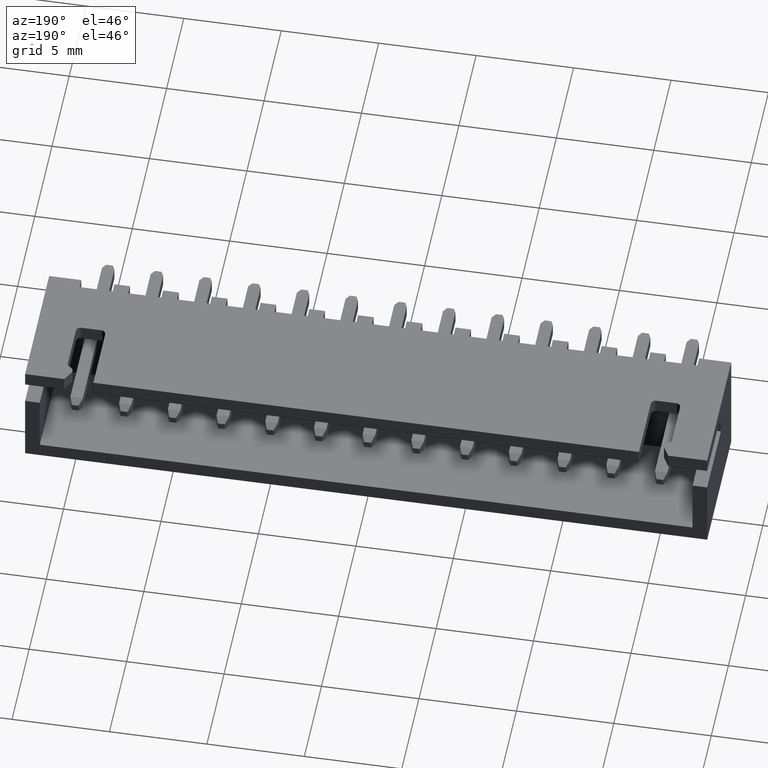
[diagram: clean part render]
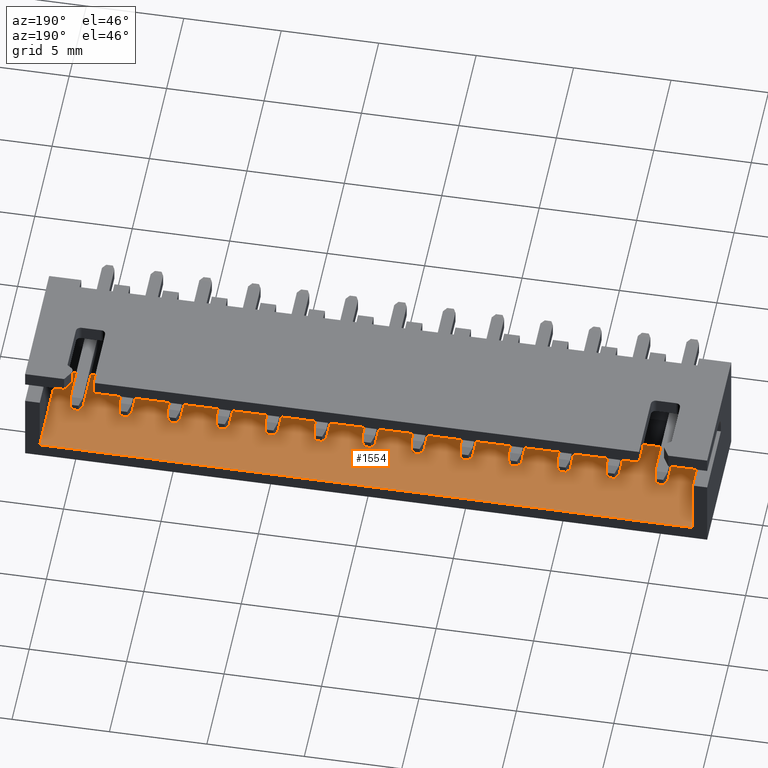
[diagram: same view with one face highlighted and labeled with its STEP entity id]
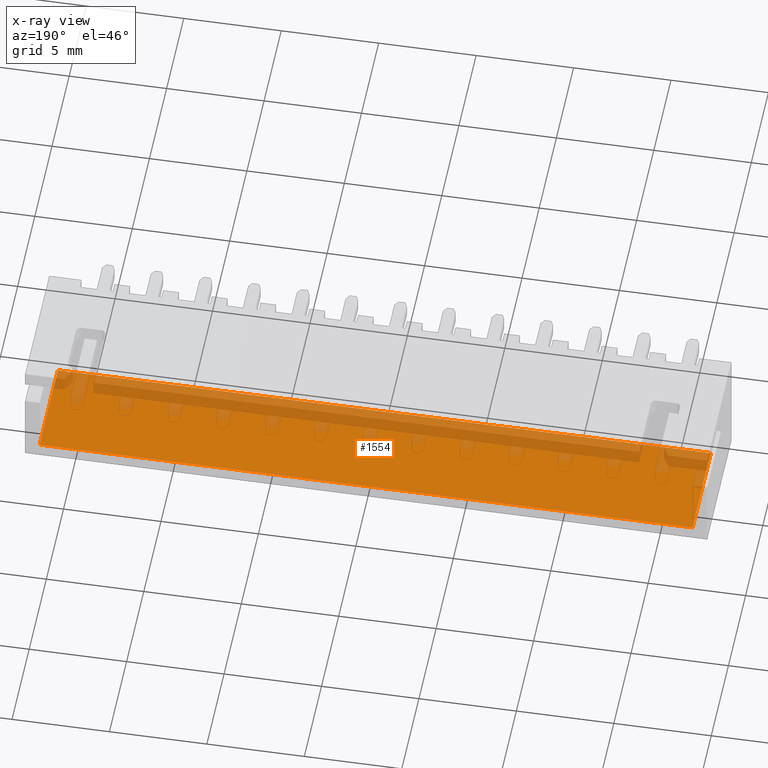
[diagram: x-ray of the same camera — body ghosted, the highlighted face saturated]
A machine part, auxiliary view. The second image highlights one B-rep face of the part: STEP entity #1554.
The next image is the same camera in x-ray: the body ghosted, the highlighted face saturated — about 26% of this face is hidden behind the body in this view.
In plain terms, the highlighted planar face has unit normal (0, 0, -1).
Its self-contained STEP definition (entity closure, byte-faithful):
#25 = AXIS2_PLACEMENT_3D ( 'NONE', #1706, #4887, #4356 ) ;
#133 = EDGE_CURVE ( 'NONE', #5372, #3361, #6652, .T. ) ;
#332 = EDGE_CURVE ( 'NONE', #3361, #2227, #5879, .T. ) ;
#612 = EDGE_LOOP ( 'NONE', ( #5446, #3584, #5689, #4575 ) ) ;
#671 = VECTOR ( 'NONE', #6223, 1000.000000000000000 ) ;
#854 = VECTOR ( 'NONE', #2283, 1000.000000000000000 ) ;
#902 = DIRECTION ( 'NONE',  ( -0.000000000000000000, 1.000000000000000000, -0.000000000000000000 ) ) ;
#1308 = CARTESIAN_POINT ( 'NONE',  ( 16.75000000000000711, 7.000000000000000000, -2.125000000000000000 ) ) ;
#1452 = LINE ( 'NONE', #3035, #671 ) ;
#1554 = ADVANCED_FACE ( 'NONE', ( #2737 ), #2833, .F. ) ;
#1701 = CARTESIAN_POINT ( 'NONE',  ( 16.75000000000000711, 7.000000000000000000, -2.125000000000000000 ) ) ;
#1702 = VERTEX_POINT ( 'NONE', #2996 ) ;
#1706 = CARTESIAN_POINT ( 'NONE',  ( 16.75000000000000711, 1.950000000000000400, -2.125000000000000000 ) ) ;
#2188 = LINE ( 'NONE', #3300, #4215 ) ;
#2227 = VERTEX_POINT ( 'NONE', #6259 ) ;
#2283 = DIRECTION ( 'NONE',  ( -1.000000000000000000, 0.000000000000000000, 0.000000000000000000 ) ) ;
#2580 = EDGE_CURVE ( 'NONE', #1702, #2227, #2188, .T. ) ;
#2737 = FACE_OUTER_BOUND ( 'NONE', #612, .T. ) ;
#2833 = PLANE ( 'NONE',  #25 ) ;
#2996 = CARTESIAN_POINT ( 'NONE',  ( -16.74999999999999289, 1.700000000000000400, -2.125000000000000000 ) ) ;
#3035 = CARTESIAN_POINT ( 'NONE',  ( -16.74999999999999289, 1.700000000000000400, -2.125000000000000000 ) ) ;
#3300 = CARTESIAN_POINT ( 'NONE',  ( -16.74999999999999289, 1.950000000000000400, -2.125000000000000000 ) ) ;
#3361 = VERTEX_POINT ( 'NONE', #1701 ) ;
#3584 = ORIENTED_EDGE ( 'NONE', *, *, #2580, .F. ) ;
#4215 = VECTOR ( 'NONE', #5422, 1000.000000000000000 ) ;
#4356 = DIRECTION ( 'NONE',  ( -1.000000000000000000, 0.000000000000000000, 0.000000000000000000 ) ) ;
#4575 = ORIENTED_EDGE ( 'NONE', *, *, #133, .T. ) ;
#4887 = DIRECTION ( 'NONE',  ( -0.000000000000000000, 0.000000000000000000, -1.000000000000000000 ) ) ;
#5372 = VERTEX_POINT ( 'NONE', #5588 ) ;
#5422 = DIRECTION ( 'NONE',  ( -0.000000000000000000, 1.000000000000000000, -0.000000000000000000 ) ) ;
#5446 = ORIENTED_EDGE ( 'NONE', *, *, #332, .T. ) ;
#5573 = CARTESIAN_POINT ( 'NONE',  ( 16.75000000000000711, 1.950000000000000400, -2.125000000000000000 ) ) ;
#5588 = CARTESIAN_POINT ( 'NONE',  ( 16.75000000000000711, 1.700000000000000400, -2.125000000000000000 ) ) ;
#5689 = ORIENTED_EDGE ( 'NONE', *, *, #6447, .F. ) ;
#5879 = LINE ( 'NONE', #1308, #854 ) ;
#6223 = DIRECTION ( 'NONE',  ( -1.000000000000000000, -0.000000000000000000, -0.000000000000000000 ) ) ;
#6259 = CARTESIAN_POINT ( 'NONE',  ( -16.74999999999999289, 7.000000000000000000, -2.125000000000000000 ) ) ;
#6447 = EDGE_CURVE ( 'NONE', #5372, #1702, #1452, .T. ) ;
#6605 = VECTOR ( 'NONE', #902, 1000.000000000000000 ) ;
#6652 = LINE ( 'NONE', #5573, #6605 ) ;